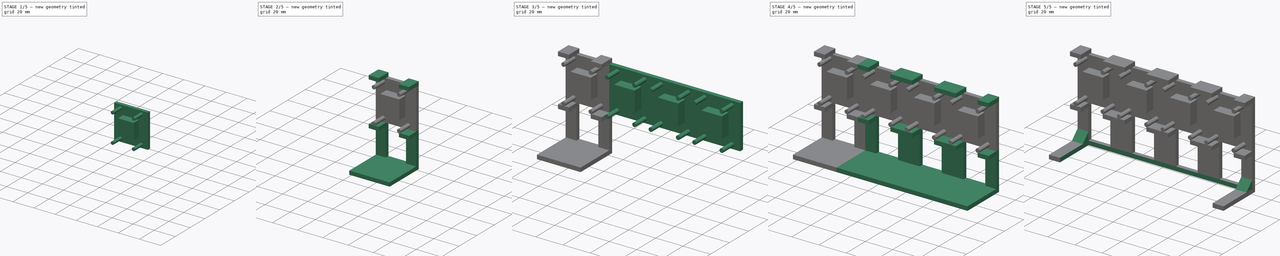
[diagram: build sequence overview — one tinted view per stage of 5, left to right]
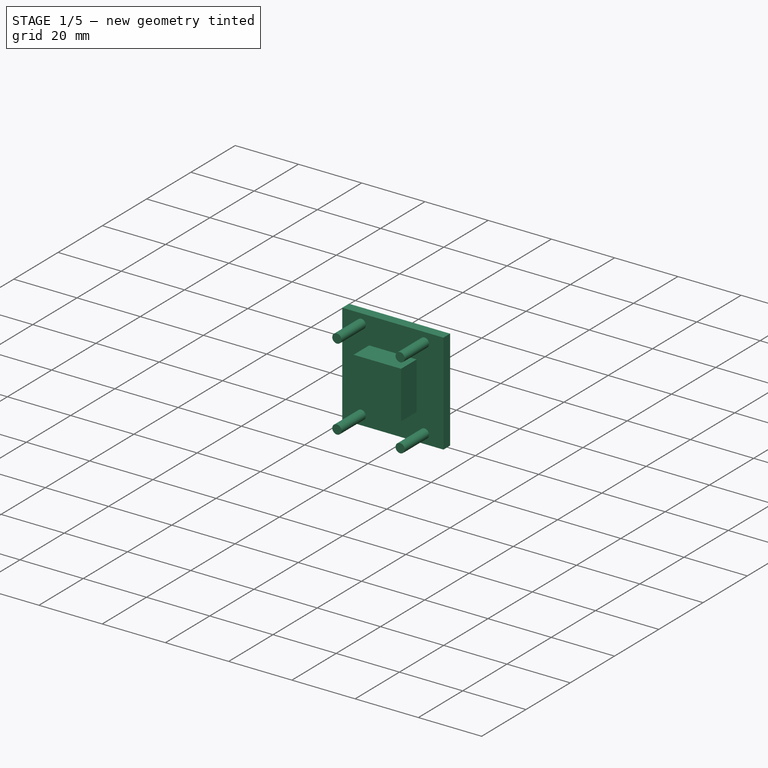
[diagram: stage 1 of 5 — iso view after this stage's code; geometry added in this stage tinted green]
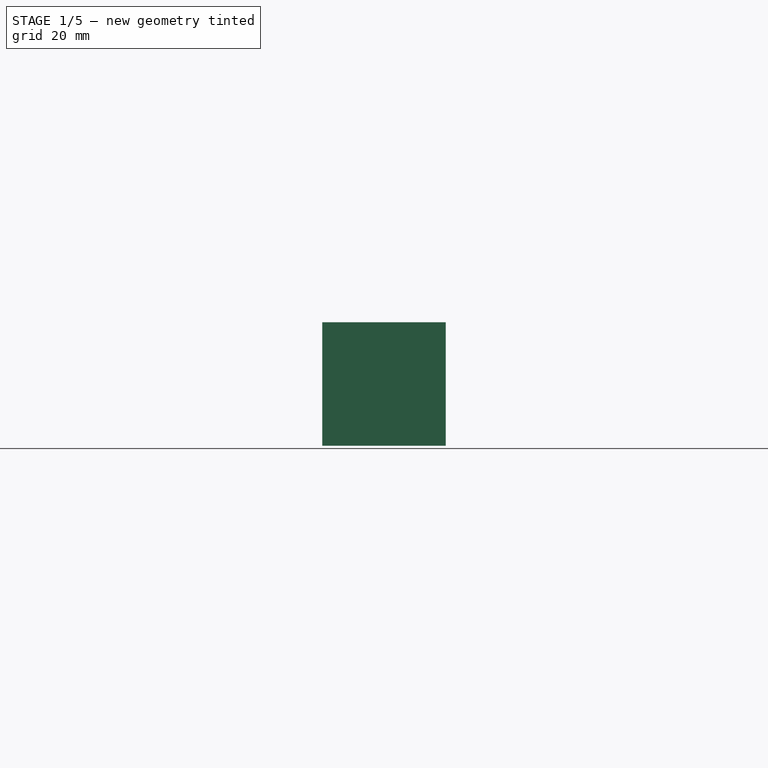
[diagram: stage 1 of 5 — front view after this stage's code; geometry added in this stage tinted green]
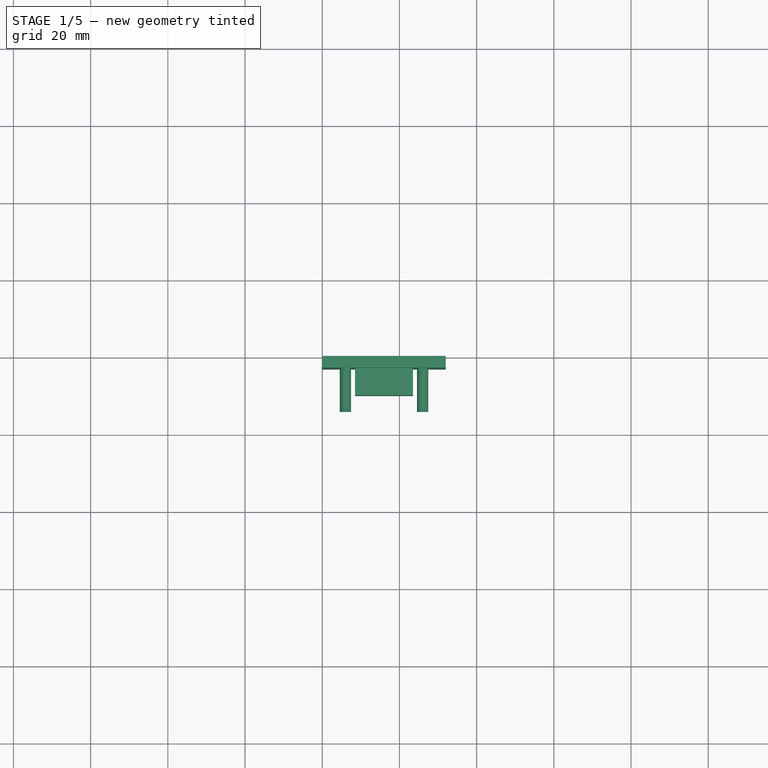
[diagram: stage 1 of 5 — top view after this stage's code; geometry added in this stage tinted green]
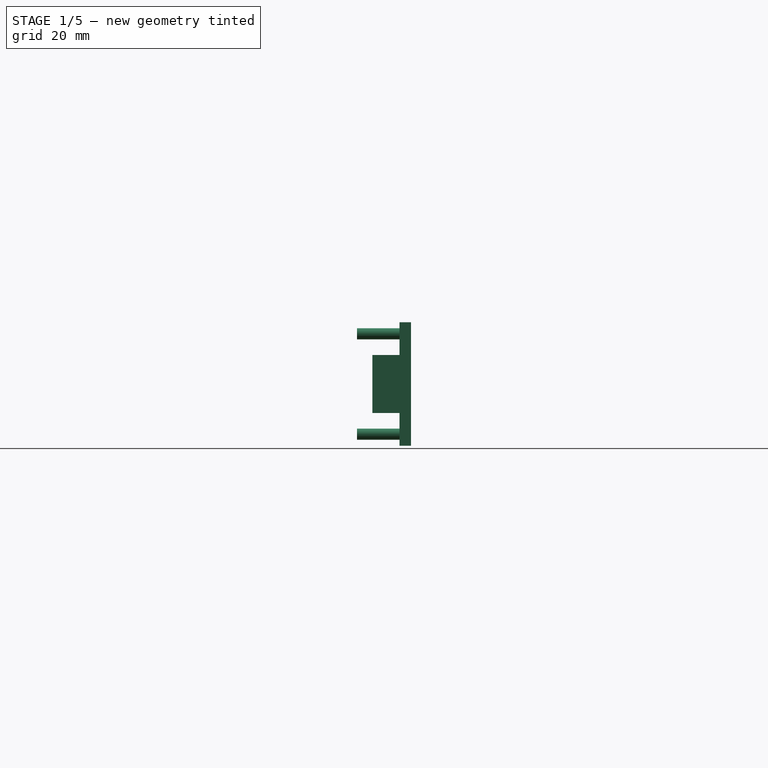
[diagram: stage 1 of 5 — right view after this stage's code; geometry added in this stage tinted green]
FCSTD DOCUMENT  (FreeCAD 0.18R4 (GitTag))
Label: support_afficheur
License: All rights reserved
LicenseURL: http://en.wikipedia.org/wiki/All_rights_reserved
objects: Sketcher::SketchObject×9, PartDesign::Pad×8, PartDesign::LinearPattern×6, App::MeasureDistance×4, Spreadsheet::Sheet×1, PartDesign::Pocket×1, PartDesign::Body×1, TechDraw::DrawSVGTemplate×1, TechDraw::DrawPage×1
note: 34 computed .brp shape members not serialized (recipe doc carries the construction recipe); baked Part::Feature solids carry a one-line shape summary decoded from their .brp

FEATURE [Sketcher::SketchObject] Sketch
  MapMode = 5
  Placement = pos=(0,0,0) rot=(1,0,0;1.5708rad)
  Support = -> [XZ_Plane]
  sketch-geometry (4):
    g0: LineSegment StartX=0 StartY=0 StartZ=0 EndX=32 EndY=0 EndZ=0
    g1: LineSegment StartX=32 StartY=0 StartZ=0 EndX=32 EndY=32 EndZ=0
    g2: LineSegment StartX=32 StartY=32 StartZ=0 EndX=0 EndY=32 EndZ=0
    g3: LineSegment StartX=0 StartY=32 StartZ=0 EndX=0 EndY=0 EndZ=0
  constraints (11):
    c: Coincident(g0,g1)
    c: Coincident(g1,g2)
    c: Coincident(g2,g3)
    c: Coincident(g3,g0)
    c: Horizontal(g0)
    c: Horizontal(g2)
    c: Vertical(g1)
    c: Vertical(g3)
    c: Coincident(g0,g-1)
    c: DistanceY(g1,g1) = 32
    c: DistanceX(g2,g2) = 32
FEATURE [PartDesign::Pad] Pad
  Length = 3
  Length2 = 100
  Placement = pos=(0,0,0) rot=(1,0,0;1.5708rad)
  Profile = -> Sketch
  Type = 0
  expr: Length = dimensions.epaisseur_arriere
FEATURE [Sketcher::SketchObject] Sketch001  label="Trous"
  ExternalGeometry = -> [Pad]
  MapMode = 5
  Placement = pos=(0,-3,0) rot=(1,0,0;1.5708rad)
  Support = -> [Pad]
  expr: Constraints[7] = dimensions.pos_y_trou
  expr: Constraints[6] = dimensions.pos_x_trou
  expr: Constraints[4] = dimensions.pos_y_trou
  expr: Constraints[3] = dimensions.pos_x_trou
  expr: Constraints[1] = dimensions.pos_y_trou
  expr: Constraints[0] = dimensions.pos_x_trou
  expr: Constraints[9] = dimensions.pos_x_trou
  expr: Constraints[10] = dimensions.pos_y_trou
  expr: Constraints[5] = dimensions.diametre_trou
  expr: Constraints[2] = dimensions.diametre_trou
  expr: Constraints[8] = dimensions.diametre_trou
  expr: Constraints[11] = dimensions.diametre_trou
  sketch-geometry (4):
    g0: Circle CenterX=6 CenterY=3 CenterZ=0 NormalX=0 NormalY=0 NormalZ=1 AngleXU=0 Radius=1.45
    g1: Circle CenterX=26 CenterY=3 CenterZ=0 NormalX=0 NormalY=0 NormalZ=1 AngleXU=0 Radius=1.45
    g2: Circle CenterX=26 CenterY=29 CenterZ=0 NormalX=0 NormalY=0 NormalZ=1 AngleXU=0 Radius=1.45
    g3: Circle CenterX=6 CenterY=29 CenterZ=0 NormalX=0 NormalY=0 NormalZ=1 AngleXU=0 Radius=1.45
  constraints (12):
    c: DistanceX(g-1,g0) = 6
    c: DistanceY(g-1,g0) = 3
    c: Diameter(g0) = 2.9
    c: DistanceX(g1,g-3) = 6
    c: DistanceY(g-3,g1) = 3
    c: Diameter(g1) = 2.9
    c: DistanceX(g2,g-3) = 6
    c: DistanceY(g2,g-3) = 3
    c: Diameter(g2) = 2.9
    c: DistanceX(g-4,g3) = 6
    c: DistanceY(g3,g-4) = 3
    c: Diameter(g3) = 2.9
FEATURE [PartDesign::Pad] Pad001
  BaseFeature = -> Pad
  Length = 11
  Length2 = 100
  Placement = pos=(0,0,0) rot=(1,0,0;1.5708rad)
  Profile = -> Sketch001
  Type = 0
  expr: Length = dimensions.hauteur_tige
FEATURE [Sketcher::SketchObject] Sketch002
  MapMode = 5
  Placement = pos=(0,-3,0) rot=(1,0,0;1.5708rad)
  Support = -> [Pad001]
  expr: Constraints[14] = dimensions.largeur_supp_ar
  expr: Constraints[13] = dimensions.pos_y_supp_ar
  expr: Constraints[12] = dimensions.pos_x_supp_ar
  sketch-geometry (5):
    g0: LineSegment StartX=23.5 StartY=23.5 StartZ=0 EndX=8.5 EndY=23.5 EndZ=0
    g1: LineSegment StartX=8.5 StartY=23.5 StartZ=0 EndX=8.5 EndY=8.5 EndZ=0
    g2: LineSegment StartX=8.5 StartY=8.5 StartZ=0 EndX=23.5 EndY=8.5 EndZ=0
    g3: LineSegment StartX=23.5 StartY=8.5 StartZ=0 EndX=23.5 EndY=23.5 EndZ=0
    g4: Circle [constr] CenterX=16 CenterY=16 CenterZ=0 NormalX=0 NormalY=0 NormalZ=1 AngleXU=0 Radius=10.6066
  constraints (15):
    c: Coincident(g0,g1)
    c: Coincident(g1,g2)
    c: Coincident(g2,g3)
    c: Coincident(g3,g0)
    c: Equal(g0,g1)
    c: Equal(g0,g2)
    c: Equal(g0,g3)
    c: PointOnObject(g0,g4)
    c: PointOnObject(g1,g4)
    c: PointOnObject(g2,g4)
    c: PointOnObject(g3,g4)
    c: Parallel(g-1,g2)
    c: DistanceX(g-1,g4) = 16
    c: DistanceY(g-1,g4) = 16
    c: DistanceY(g3,g3) = 15
FEATURE [PartDesign::Pad] Pad002
  BaseFeature = -> Pad001
  Length = 7
  Length2 = 100
  Placement = pos=(0,0,0) rot=(1,0,0;1.5708rad)
  Profile = -> Sketch002
  Type = 0
  expr: Length = dimensions.hauteur_supp_ar
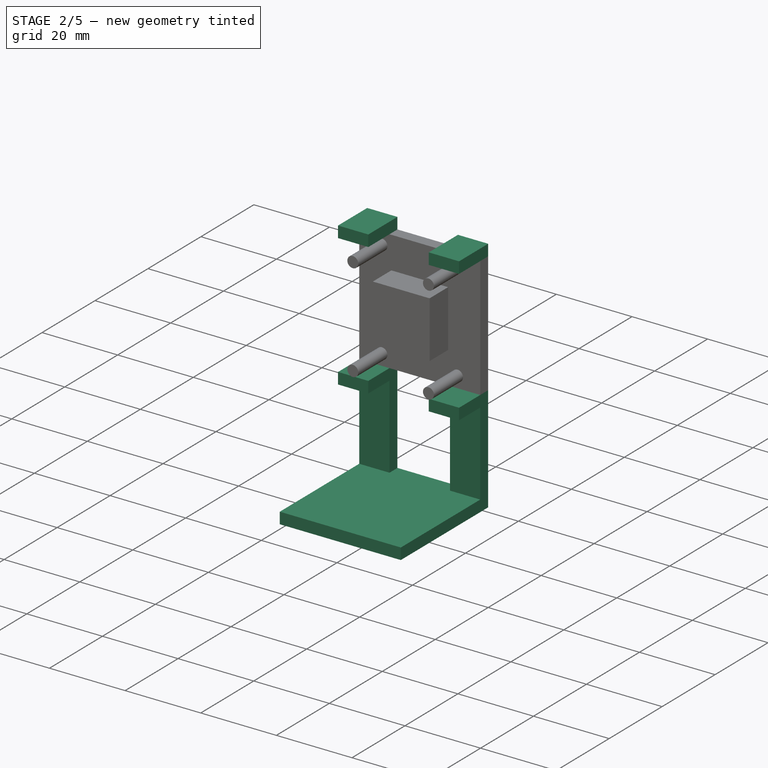
[diagram: stage 2 of 5 — iso view after this stage's code; geometry added in this stage tinted green]
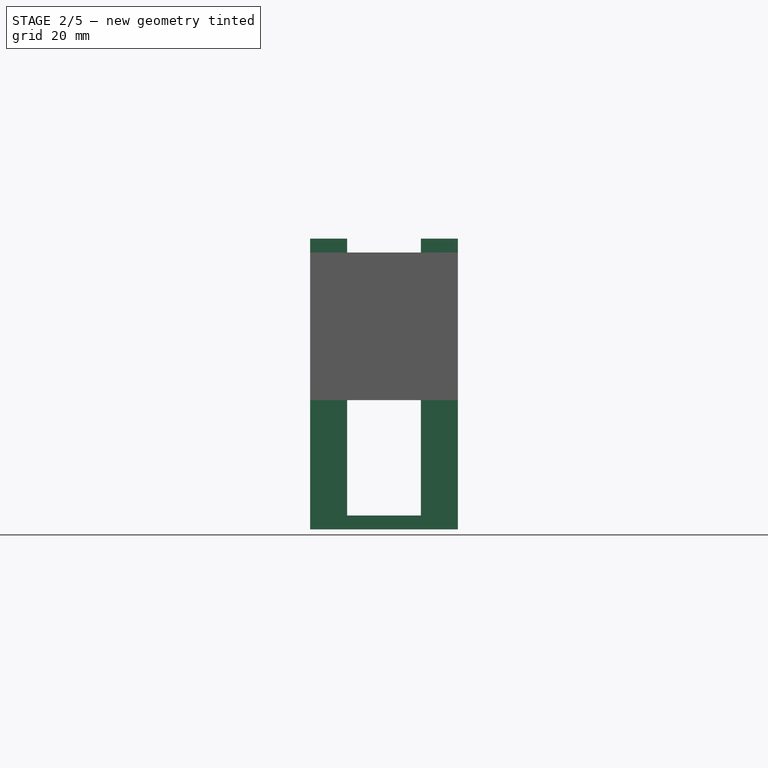
[diagram: stage 2 of 5 — front view after this stage's code; geometry added in this stage tinted green]
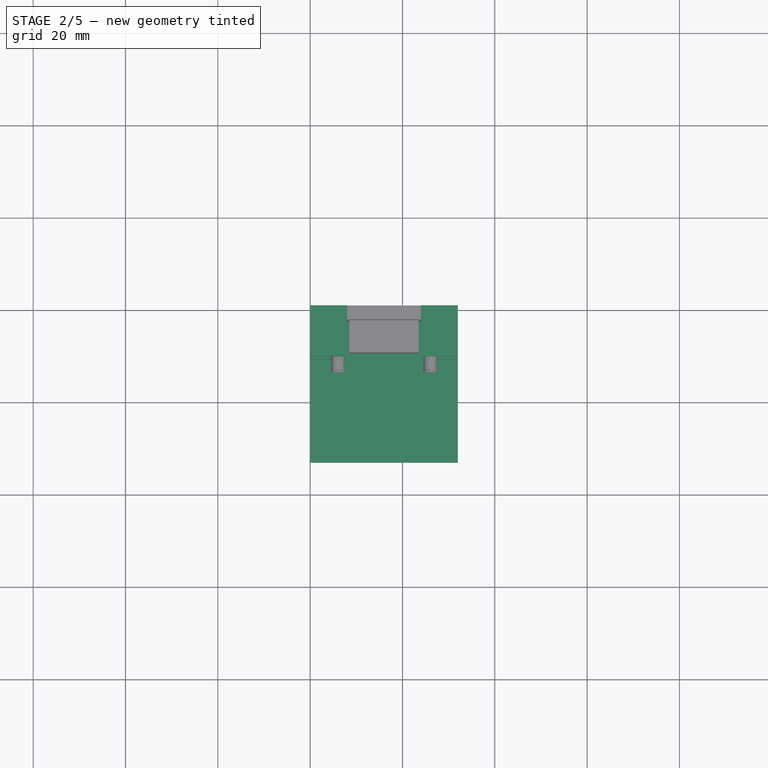
[diagram: stage 2 of 5 — top view after this stage's code; geometry added in this stage tinted green]
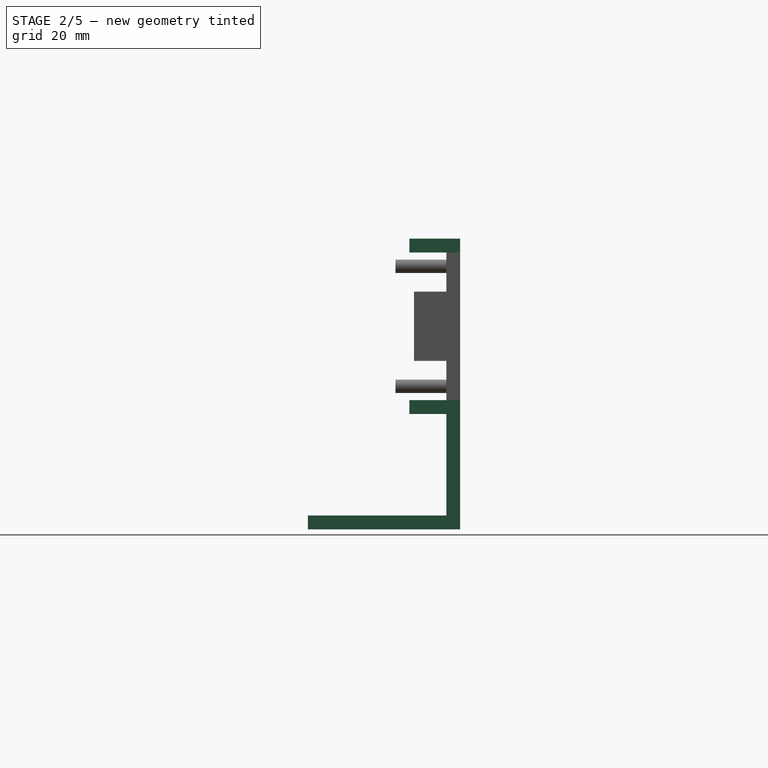
[diagram: stage 2 of 5 — right view after this stage's code; geometry added in this stage tinted green]
FEATURE [Sketcher::SketchObject] Sketch003  label="support_top_bottom"
  ExternalGeometry = -> [Pad002]
  MapMode = 5
  Placement = pos=(0,0,0) rot=(1,0,0;1.5708rad)
  Support = -> [XZ_Plane]
  expr: Constraints[32] = dimensions.supp_top_bot_larg
  expr: Constraints[31] = dimensions.supp_top_bot_long
  expr: Constraints[21] = dimensions.supp_top_bot_larg
  expr: Constraints[20] = dimensions.supp_top_bot_long
  expr: Constraints[43] = dimensions.supp_top_bot_larg
  expr: Constraints[42] = dimensions.supp_top_bot_long
  expr: Constraints[10] = dimensions.supp_top_bot_larg
  expr: Constraints[9] = dimensions.supp_top_bot_long
  sketch-geometry (16):
    g0: LineSegment StartX=0 StartY=0 StartZ=0 EndX=8 EndY=0 EndZ=0
    g1: LineSegment StartX=8 StartY=0 StartZ=0 EndX=8 EndY=-3 EndZ=0
    g2: LineSegment StartX=8 StartY=-3 StartZ=0 EndX=0 EndY=-3 EndZ=0
    g3: LineSegment StartX=0 StartY=-3 StartZ=0 EndX=0 EndY=0 EndZ=0
    g4: LineSegment StartX=0 StartY=32 StartZ=0 EndX=8 EndY=32 EndZ=0
    g5: LineSegment StartX=8 StartY=32 StartZ=0 EndX=8 EndY=35 EndZ=0
    g6: LineSegment StartX=8 StartY=35 StartZ=0 EndX=0 EndY=35 EndZ=0
    g7: LineSegment StartX=0 StartY=35 StartZ=0 EndX=0 EndY=32 EndZ=0
    g8: LineSegment StartX=24 StartY=35 StartZ=0 EndX=32 EndY=35 EndZ=0
    g9: LineSegment StartX=32 StartY=35 StartZ=0 EndX=32 EndY=32 EndZ=0
    g10: LineSegment StartX=32 StartY=32 StartZ=0 EndX=24 EndY=32 EndZ=0
    g11: LineSegment StartX=24 StartY=32 StartZ=0 EndX=24 EndY=35 EndZ=0
    g12: LineSegment StartX=24 StartY=0 StartZ=0 EndX=32 EndY=0 EndZ=0
    g13: LineSegment StartX=32 StartY=0 StartZ=0 EndX=32 EndY=-3 EndZ=0
    g14: LineSegment StartX=32 StartY=-3 StartZ=0 EndX=24 EndY=-3 EndZ=0
    g15: LineSegment StartX=24 StartY=-3 StartZ=0 EndX=24 EndY=0 EndZ=0
  constraints (44):
    c: Coincident(g0,g1)
    c: Coincident(g1,g2)
    c: Coincident(g2,g3)
    c: Coincident(g3,g0)
    c: Horizontal(g0)
    c: Horizontal(g2)
    c: Vertical(g1)
    c: Vertical(g3)
    c: Coincident(g0,g-1)
    c: DistanceX(g0,g0) = 8
    c: DistanceY(g1,g1) = 3
    c: Coincident(g4,g5)
    c: Coincident(g5,g6)
    c: Coincident(g6,g7)
    c: Coincident(g7,g4)
    c: Horizontal(g4)
    c: Horizontal(g6)
    c: Vertical(g5)
    c: Vertical(g7)
    c: Coincident(g4,g-3)
    c: DistanceX(g6,g6) = 8
    c: DistanceY(g7,g7) = 3
    c: Coincident(g8,g9)
    c: Coincident(g9,g10)
    c: Coincident(g10,g11)
    c: Coincident(g11,g8)
    c: Horizontal(g8)
    c: Horizontal(g10)
    c: Vertical(g9)
    c: Vertical(g11)
    c: Coincident(g9,g-3)
    c: DistanceX(g8,g8) = 8
    c: DistanceY(g9,g9) = 3
    c: Coincident(g12,g13)
    c: Coincident(g13,g14)
    c: Coincident(g14,g15)
    c: Coincident(g15,g12)
    c: Horizontal(g12)
    c: Horizontal(g14)
    c: Vertical(g13)
    c: Vertical(g15)
    c: Coincident(g-4,g12)
    c: DistanceX(g14,g14) = 8
    c: DistanceY(g13,g13) = 3
FEATURE [PartDesign::Pad] Pad003
  BaseFeature = -> Pad002
  Length = 11
  Length2 = 100
  Placement = pos=(0,0,0) rot=(1,0,0;1.5708rad)
  Profile = -> Sketch003
  Type = 0
  expr: Length = dimensions.epaisseur_top_bot_supp
FEATURE [Spreadsheet::Sheet] Spreadsheet  label="dimensions"
  cells = A1=largeur (mm); B1=epaisseur arrriere (mm); C1=diametre tour(mm); D1=pos_x_trou (mm); E1=pos_y_trou (mm); F1=hauteur_tige (mm); G1=pos_x_supp_ar (mm); H1=pos_y_supp_ar (mm); A2(largeur)==32mm; B2(epaisseur_arriere)==3mm; C2(diametre_trou)==2.9mm; D2(pos_x_trou)==6mm; E2(pos_y_trou)==3mm; F2(hauteur_tige)==11mm; G2(pos_x_supp_ar)==largeur / 2; H2(pos_y_supp_ar)==largeur / 2; G4=largeur_supp_ar (mm); H4=hauteur_supp_ar (mm=; G5(largeur_supp_ar)==15mm; H5(hauteur_supp_ar)==7mm; G7=supp_top_bot_larg (mm); H7=supp_top_bot_long (mm); I7=epaisseur_top_bot_supp (mm); G8(supp_top_bot_larg)==3mm; H8(supp_top_bot_long)==8mm; I8(epaisseur_top_bot_supp)==epaisseur_arriere + hauteur_supp_ar + 1mm; A11=supp_nb; B11=longueur repetition lineaire (mm); A12(supp_nb)=4; B12(lg_repetition_lin)==(supp_nb - 1) * largeur; A15=longueur_supp_sol (mm); B15=hauteur_supp_sol  (mm); C15=longueur_supp_sol2; D15=epaisseur_supp_sol; E15=hauteur_trou_cable; G15=lg_x_renfort; H15=lg_y_renfort; A16(lg_supp_sol)==30mm; B16(ht_supp_sol)==25mm; C16(lg_supp_sol_2)==50mm; D16(ep_supp_sol)==3mm; E16(ht_trou_cable)==ht_supp_sol - ep_supp_sol; G16(lg_x_renfort)==3mm; H16(lg_y_renfort)==6mm; A18=longueur_enlevement_supp_sol; A19(lg_enlevement_supp_bot)==supp_nb * largeur - 2 * supp_top_bot_long
FEATURE [Sketcher::SketchObject] Sketch004
  ExternalGeometry = -> [Pad003]
  MapMode = 5
  Placement = pos=(0,0,0) rot=(1,0,0;1.5708rad)
  Support = -> [XZ_Plane]
  expr: Constraints[13] = dimensions.ht_trou_cable
  expr: Constraints[10] = dimensions.ht_trou_cable
  expr: Constraints[4] = dimensions.largeur
  expr: Constraints[1] = dimensions.ht_supp_sol
  sketch-geometry (8):
    g0: LineSegment StartX=2.20879e-10 StartY=-2.99953 StartZ=0 EndX=0 EndY=-27.9995 EndZ=0
    g1: LineSegment StartX=0 StartY=-27.9995 StartZ=0 EndX=32 EndY=-27.9995 EndZ=0
    g2: LineSegment StartX=32 StartY=-27.9995 StartZ=0 EndX=32 EndY=-3 EndZ=0
    g3: LineSegment StartX=8 StartY=-3 StartZ=0 EndX=8 EndY=-25 EndZ=0
    g4: LineSegment StartX=24 StartY=-3 StartZ=0 EndX=24 EndY=-25 EndZ=0
    g5: LineSegment StartX=8 StartY=-25 StartZ=0 EndX=24 EndY=-25 EndZ=0
    g6: LineSegment StartX=2.20879e-10 StartY=-2.99953 StartZ=0 EndX=8 EndY=-3 EndZ=0
    g7: LineSegment StartX=24 StartY=-3 StartZ=0 EndX=32 EndY=-3 EndZ=0
  constraints (20):
    c: PointOnObject(g0,g-2)
    c: DistanceY(g0,g0) = 25
    c: Coincident(g1,g0)
    c: Perpendicular(g1,g0)
    c: DistanceX(g1,g1) = 32
    c: Coincident(g2,g1)
    c: Parallel(g2,g0)
    c: Coincident(g-3,g2)
    c: Coincident(g3,g-4)
    c: Parallel(g3,g0)
    c: DistanceY(g3,g3) = 22
    c: Coincident(g4,g-3)
    c: Parallel(g4,g2)
    c: DistanceY(g4,g4) = 22
    c: Coincident(g5,g3)
    c: Coincident(g5,g4)
    c: Coincident(g0,g6)
    c: Coincident(g6,g3)
    c: Coincident(g7,g4)
    c: Coincident(g7,g2)
FEATURE [PartDesign::Pad] Pad004
  BaseFeature = -> Pad003
  Length = 3
  Length2 = 100
  Placement = pos=(0,0,0) rot=(1,0,0;1.5708rad)
  Profile = -> Sketch004
  Type = 0
  expr: Length = dimensions.epaisseur_arriere
FEATURE [Sketcher::SketchObject] Sketch005
  ExternalGeometry = -> [Pad004]
  MapMode = 5
  Placement = pos=(0,-3,0) rot=(1,0,0;1.5708rad)
  Support = -> [Pad004]
  expr: Constraints[9] = dimensions.ep_supp_sol
  sketch-geometry (4):
    g0: LineSegment StartX=0 StartY=-24.9995 StartZ=0 EndX=32 EndY=-24.9995 EndZ=0
    g1: LineSegment StartX=32 StartY=-24.9995 StartZ=0 EndX=32 EndY=-27.9995 EndZ=0
    g2: LineSegment StartX=32 StartY=-27.9995 StartZ=0 EndX=0 EndY=-27.9995 EndZ=0
    g3: LineSegment StartX=0 StartY=-27.9995 StartZ=0 EndX=0 EndY=-24.9995 EndZ=0
  constraints (10):
    c: Coincident(g0,g1)
    c: Coincident(g1,g2)
    c: Coincident(g2,g3)
    c: Coincident(g3,g0)
    c: Horizontal(g0)
    c: Horizontal(g2)
    c: Vertical(g1)
    c: Vertical(g3)
    c: Coincident(g-3,g2)
    c: DistanceY(g1,g1) = 3
FEATURE [PartDesign::Pad] Pad005
  BaseFeature = -> Pad004
  Length = 30
  Length2 = 100
  Placement = pos=(0,0,0) rot=(1,0,0;1.5708rad)
  Profile = -> Sketch005
  Type = 0
  expr: Length = dimensions.lg_supp_sol
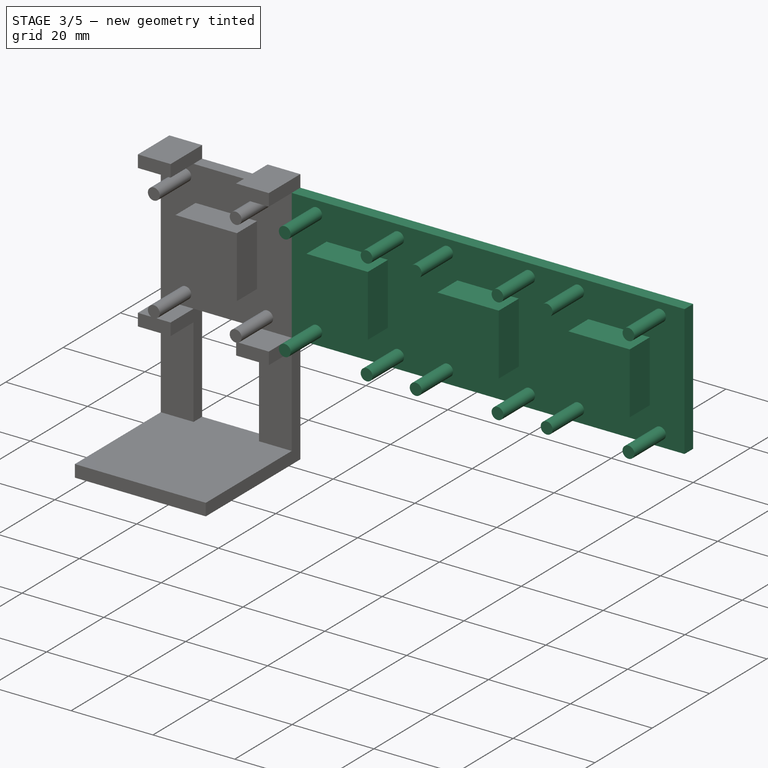
[diagram: stage 3 of 5 — iso view after this stage's code; geometry added in this stage tinted green]
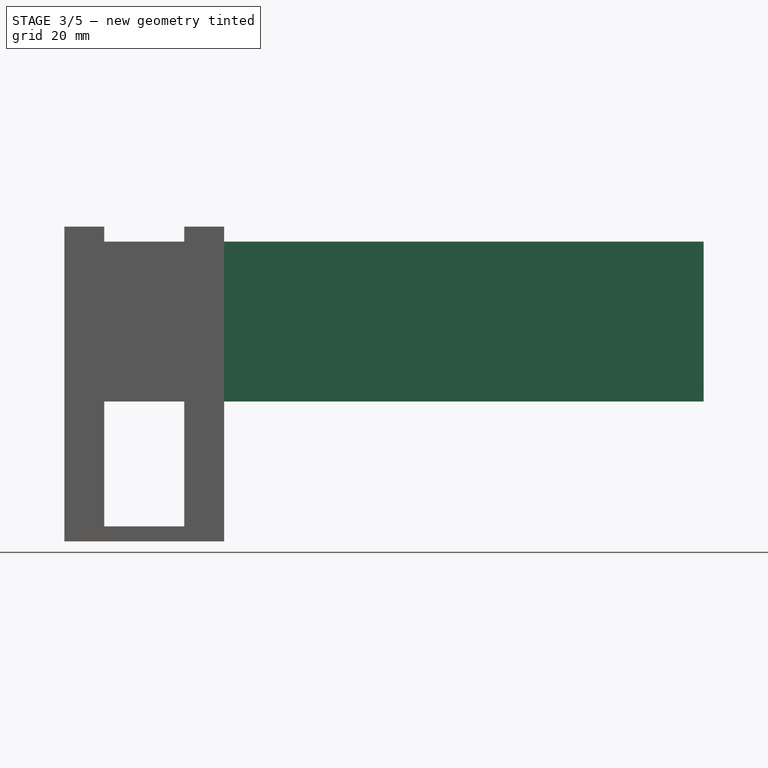
[diagram: stage 3 of 5 — front view after this stage's code; geometry added in this stage tinted green]
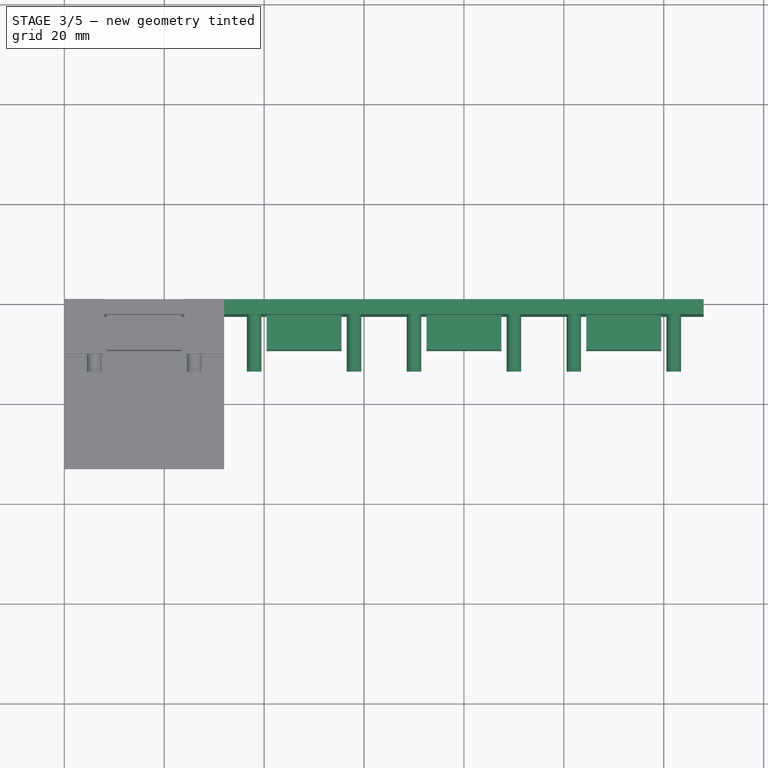
[diagram: stage 3 of 5 — top view after this stage's code; geometry added in this stage tinted green]
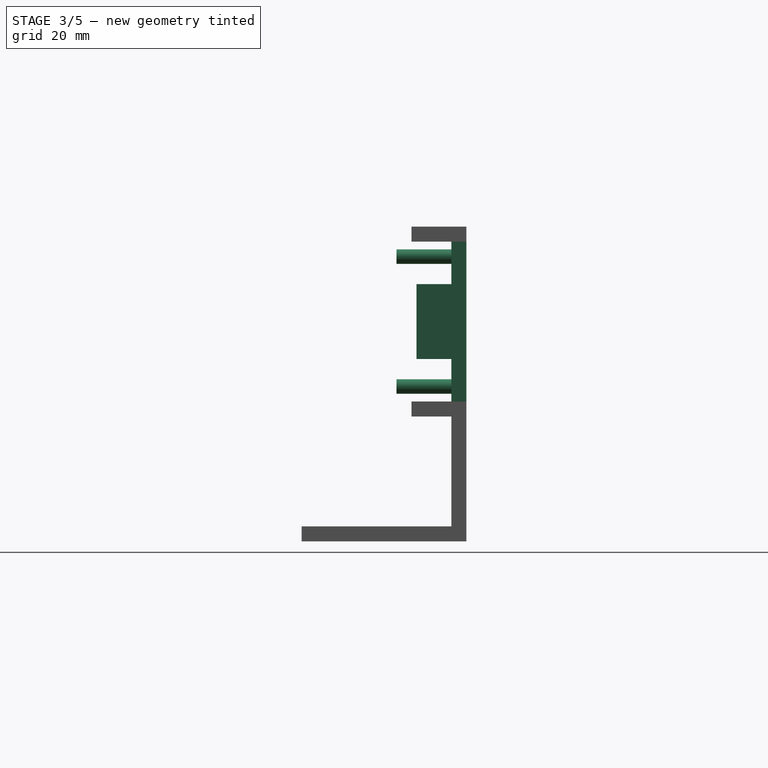
[diagram: stage 3 of 5 — right view after this stage's code; geometry added in this stage tinted green]
FEATURE [PartDesign::LinearPattern] LinearPattern
  BaseFeature = -> Pad005
  Direction = -> Sketch [H_Axis]
  Length = 96
  Occurrences = 4
  Originals = -> [Pad]
  Placement = pos=(0,0,0) rot=(1,0,0;1.5708rad)
  expr: Occurrences = dimensions.supp_nb
  expr: Length = dimensions.lg_repetition_lin
FEATURE [PartDesign::LinearPattern] LinearPattern001
  BaseFeature = -> LinearPattern
  Direction = -> Sketch001 [H_Axis]
  Length = 96
  Occurrences = 4
  Originals = -> [Pad001]
  Placement = pos=(0,0,0) rot=(1,0,0;1.5708rad)
  expr: Occurrences = dimensions.supp_nb
  expr: Length = dimensions.lg_repetition_lin
FEATURE [PartDesign::LinearPattern] LinearPattern002
  BaseFeature = -> LinearPattern001
  Direction = -> Sketch002 [H_Axis]
  Length = 96
  Occurrences = 4
  Originals = -> [Pad002]
  Placement = pos=(0,0,0) rot=(1,0,0;1.5708rad)
  expr: Occurrences = dimensions.supp_nb
  expr: Length = dimensions.lg_repetition_lin
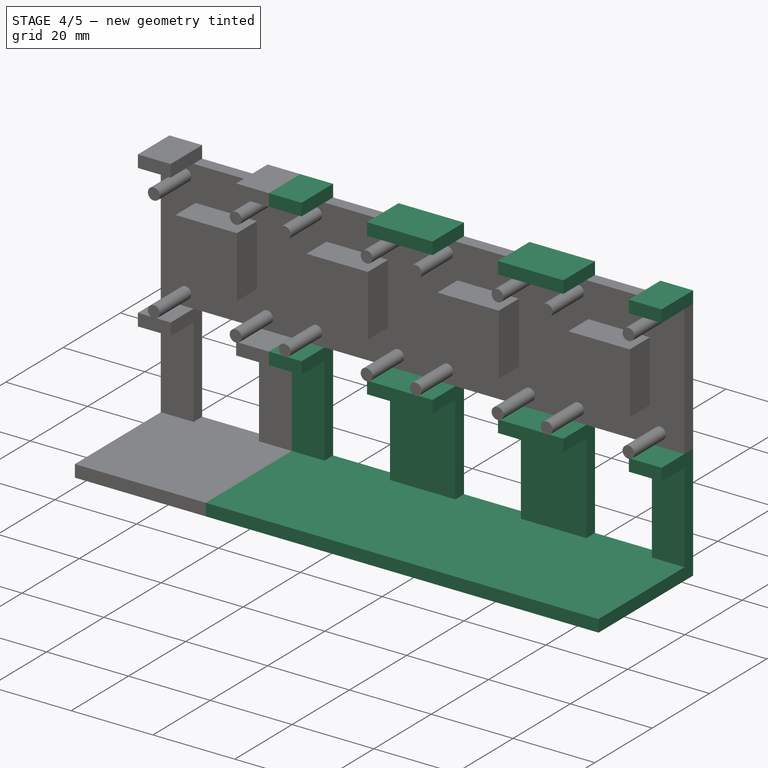
[diagram: stage 4 of 5 — iso view after this stage's code; geometry added in this stage tinted green]
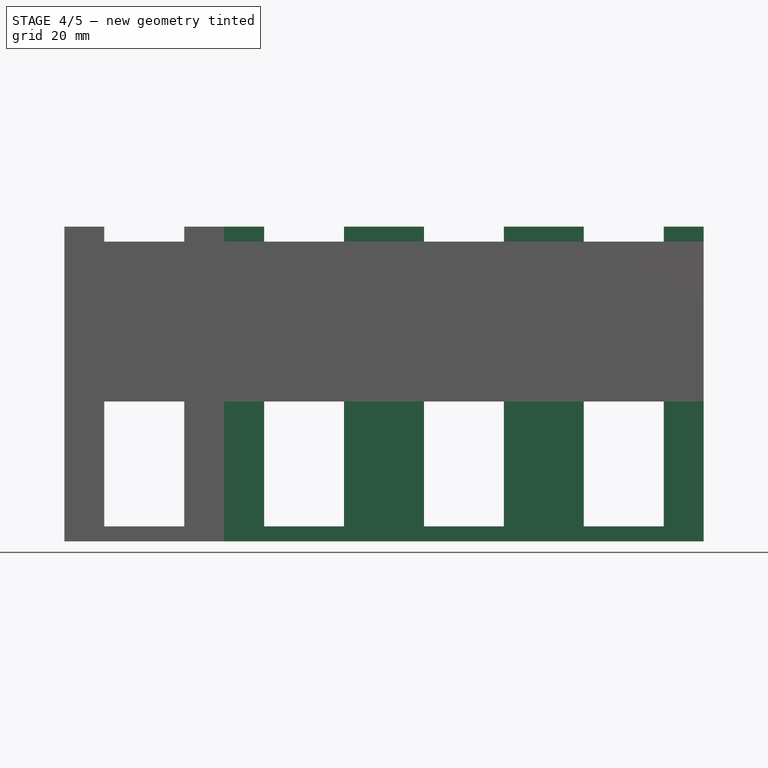
[diagram: stage 4 of 5 — front view after this stage's code; geometry added in this stage tinted green]
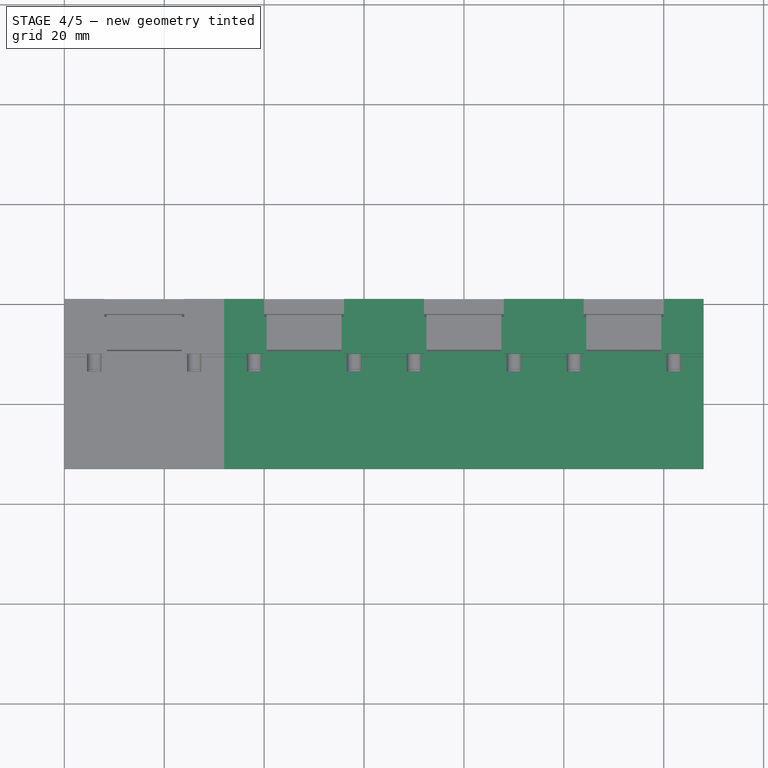
[diagram: stage 4 of 5 — top view after this stage's code; geometry added in this stage tinted green]
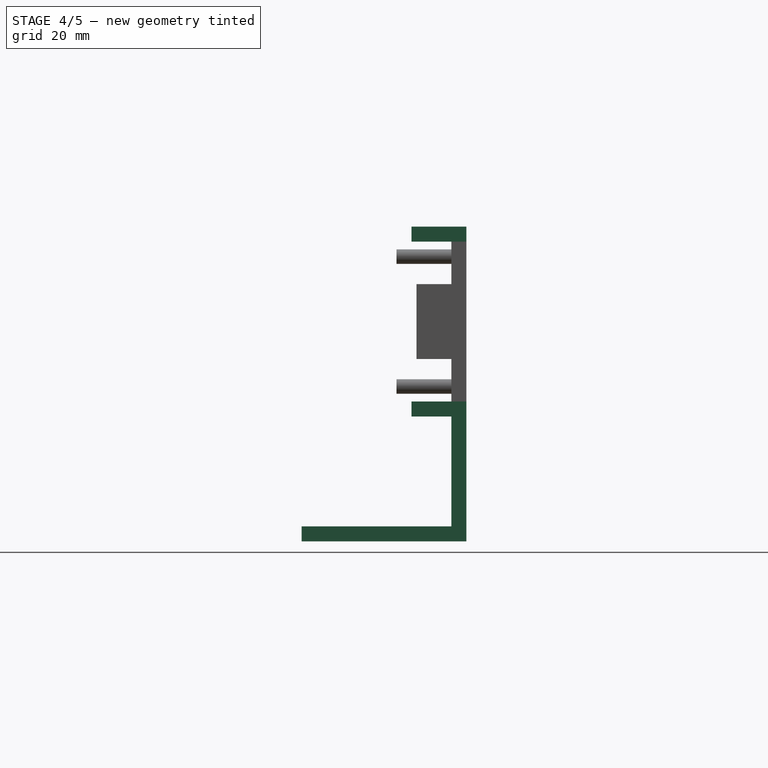
[diagram: stage 4 of 5 — right view after this stage's code; geometry added in this stage tinted green]
FEATURE [PartDesign::LinearPattern] LinearPattern003
  BaseFeature = -> LinearPattern002
  Direction = -> Sketch003 [H_Axis]
  Length = 96
  Occurrences = 4
  Originals = -> [Pad003]
  Placement = pos=(0,0,0) rot=(1,0,0;1.5708rad)
  expr: Occurrences = dimensions.supp_nb
  expr: Length = dimensions.lg_repetition_lin
FEATURE [PartDesign::LinearPattern] LinearPattern004
  BaseFeature = -> LinearPattern003
  Direction = -> Sketch004 [H_Axis]
  Length = 96
  Occurrences = 4
  Originals = -> [Pad004]
  Placement = pos=(0,0,0) rot=(1,0,0;1.5708rad)
  expr: Occurrences = dimensions.supp_nb
  expr: Length = dimensions.lg_repetition_lin
FEATURE [PartDesign::LinearPattern] LinearPattern005
  BaseFeature = -> LinearPattern004
  Direction = -> Sketch005 [H_Axis]
  Length = 96
  Occurrences = 4
  Originals = -> [Pad005]
  Placement = pos=(0,0,0) rot=(1,0,0;1.5708rad)
  expr: Occurrences = dimensions.supp_nb
  expr: Length = dimensions.lg_repetition_lin
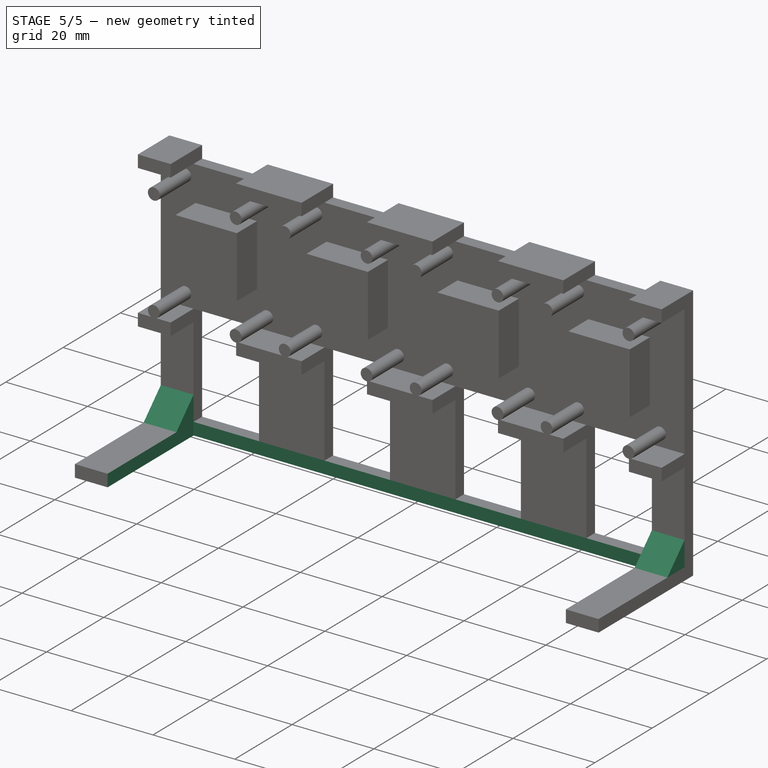
[diagram: stage 5 of 5 — iso view after this stage's code; geometry added in this stage tinted green]
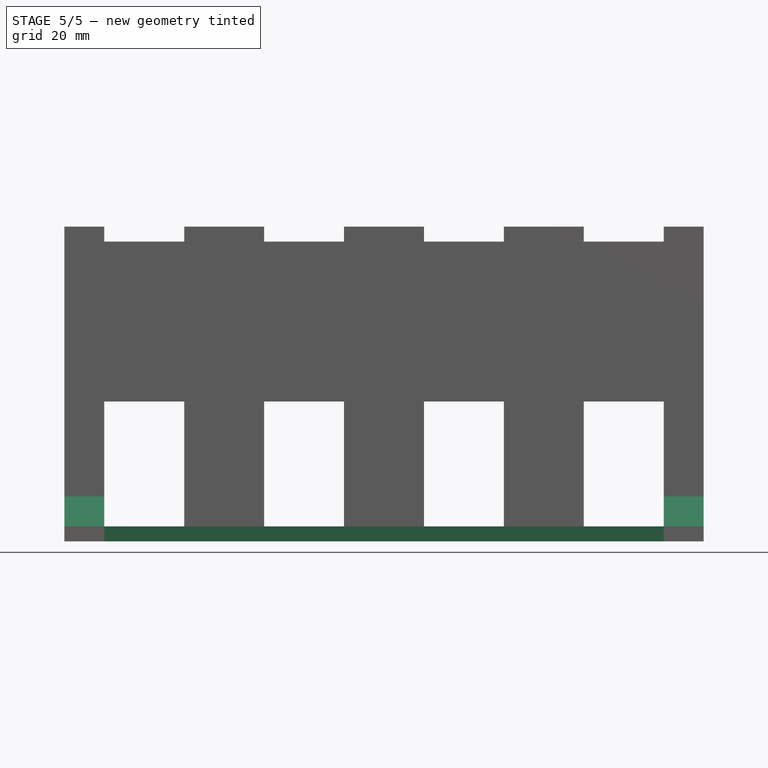
[diagram: stage 5 of 5 — front view after this stage's code; geometry added in this stage tinted green]
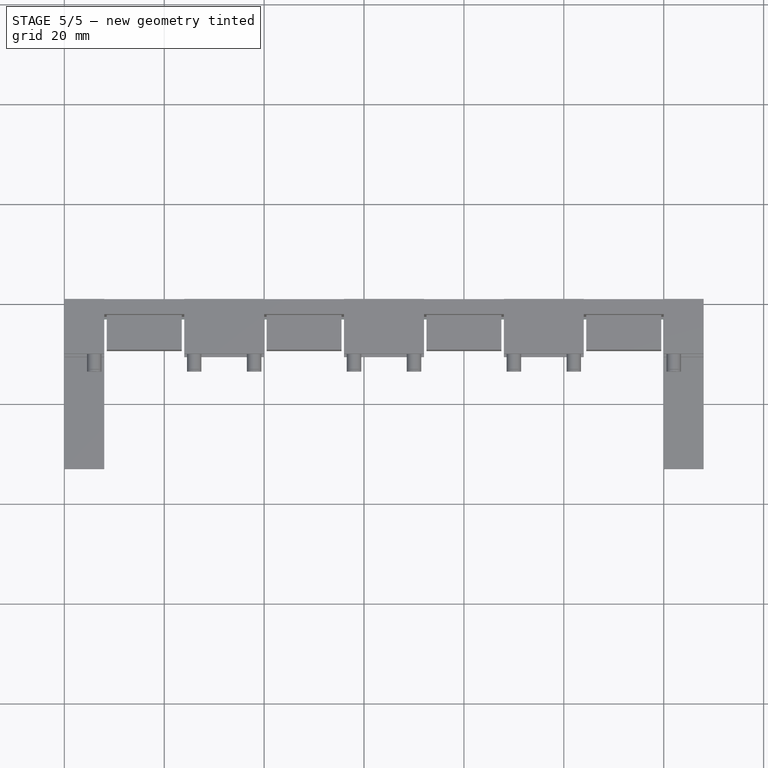
[diagram: stage 5 of 5 — top view after this stage's code; geometry added in this stage tinted green]
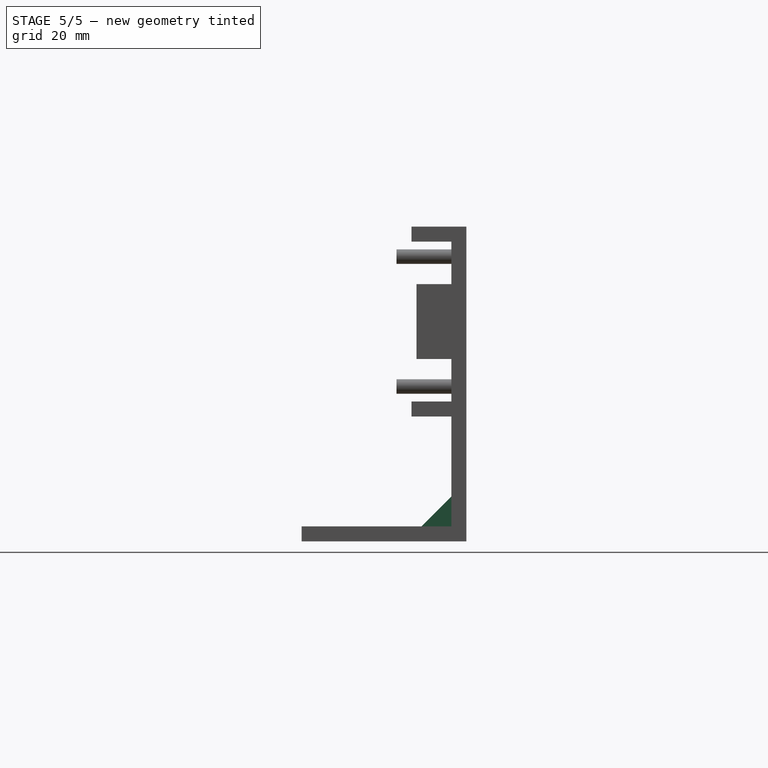
[diagram: stage 5 of 5 — right view after this stage's code; geometry added in this stage tinted green]
FEATURE [Sketcher::SketchObject] Sketch006
  MapMode = 5
  Placement = pos=(0,-6.2e-15,-27.9995) rot=(1,0,0;3.14159rad)
  Support = -> [LinearPattern005]
  expr: Constraints[11] = dimensions.lg_supp_sol
  expr: Constraints[10] = dimensions.lg_enlevement_supp_bot
  expr: Constraints[9] = dimensions.supp_top_bot_long
  expr: Constraints[8] = dimensions.epaisseur_arriere
  sketch-geometry (4):
    g0: LineSegment StartX=8 StartY=3 StartZ=0 EndX=120 EndY=3 EndZ=0
    g1: LineSegment StartX=120 StartY=3 StartZ=0 EndX=120 EndY=33 EndZ=0
    g2: LineSegment StartX=120 StartY=33 StartZ=0 EndX=8 EndY=33 EndZ=0
    g3: LineSegment StartX=8 StartY=33 StartZ=0 EndX=8 EndY=3 EndZ=0
  constraints (12):
    c: Coincident(g0,g1)
    c: Coincident(g1,g2)
    c: Coincident(g2,g3)
    c: Coincident(g3,g0)
    c: Horizontal(g0)
    c: Horizontal(g2)
    c: Vertical(g1)
    c: Vertical(g3)
    c: DistanceY(g-1,g0) = 3
    c: DistanceX(g-1,g0) = 8
    c: DistanceX(g0,g0) = 112
    c: DistanceY(g3,g3) = 30
FEATURE [PartDesign::Pocket] Pocket
  BaseFeature = -> LinearPattern005
  Length = 3
  Length2 = 100
  Placement = pos=(0,0,0) rot=(1,0,0;1.5708rad)
  Profile = -> Sketch006
  Type = 0
  expr: Length = dimensions.ep_supp_sol
FEATURE [Sketcher::SketchObject] Sketch007
  ExternalGeometry = -> [Pocket]
  MapMode = 5
  Placement = pos=(0,0,0) rot=(0.707107,0,-0.707107;3.14159rad)
  Support = -> [Pocket]
  expr: Constraints[7] = dimensions.lg_y_renfort
  sketch-geometry (3):
    g0: LineSegment StartX=24.9995 StartY=3 StartZ=0 EndX=18.9995 EndY=3 EndZ=0
    g1: LineSegment StartX=24.9995 StartY=9 StartZ=0 EndX=24.9995 EndY=3 EndZ=0
    g2: LineSegment StartX=18.9995 StartY=3 StartZ=0 EndX=24.9995 EndY=9 EndZ=0
  constraints (8):
    c: Coincident(g0,g-4)
    c: PointOnObject(g0,g-3)
    c: Coincident(g1,g0)
    c: PointOnObject(g1,g-4)
    c: Coincident(g2,g1)
    c: Coincident(g2,g0)
    c: Angle(g0,g2) = 0.785398
    c: DistanceY(g1,g1) = 6
FEATURE [PartDesign::Pad] Pad006
  BaseFeature = -> Pocket
  Length = 8
  Length2 = 100
  Placement = pos=(0,0,0) rot=(1,0,0;1.5708rad)
  Profile = -> Sketch007
  Reversed = true
  Type = 0
  expr: Length = dimensions.supp_top_bot_long
FEATURE [Sketcher::SketchObject] Sketch008
  ExternalGeometry = -> [Pad006]
  MapMode = 5
  Placement = pos=(128,0,0) rot=(0.707107,0,0.707107;3.14159rad)
  Support = -> [Pad006]
  expr: Constraints[7] = dimensions.lg_y_renfort
  sketch-geometry (3):
    g0: LineSegment StartX=-24.9995 StartY=3 StartZ=0 EndX=-18.9995 EndY=3 EndZ=0
    g1: LineSegment StartX=-24.9995 StartY=9 StartZ=0 EndX=-18.9995 EndY=3 EndZ=0
    g2: LineSegment StartX=-24.9995 StartY=9 StartZ=0 EndX=-24.9995 EndY=3 EndZ=0
  constraints (8):
    c: Coincident(g0,g-4)
    c: PointOnObject(g0,g-3)
    c: Coincident(g1,g0)
    c: PointOnObject(g1,g-4)
    c: Coincident(g2,g0)
    c: Coincident(g1,g2)
    c: Angle(g1,g0) = 0.785398
    c: DistanceY(g2,g2) = 6
FEATURE [PartDesign::Pad] Pad007
  BaseFeature = -> Pad006
  Length = 8
  Length2 = 100
  Placement = pos=(0,0,0) rot=(1,0,0;1.5708rad)
  Profile = -> Sketch008
  Reversed = true
  Type = 0
  expr: Length = dimensions.supp_top_bot_long
FEATURE [PartDesign::Body] Body
  Group = -> [Sketch,Pad,Sketch001,Pad001,Sketch002,Pad002,Sketch003,Pad003,Sketch004,Pad004,Sketch005,Pad005,LinearPattern,LinearPattern001,LinearPattern002,LinearPattern003,LinearPattern004,LinearPattern005,Sketch006,Pocket,Sketch007,Pad006,Sketch008,Pad007]
  Origin = -> Origin
  Tip = -> Pad007
FEATURE [TechDraw::DrawSVGTemplate] Template
  EditableTexts = Designed_by_Name=Designed by Name; Drawing_number=Drawing number; FC-Date=Date; FC-SC=Scale; FC-SH=Sheet; FC-Title=Title; Subtitle=Subtitle; Weight=Weight
  Height = 210
  Orientation = 1
  Width = 297
FEATURE [TechDraw::DrawPage] Page
  KeepUpdated = true
  ProjectionType = 0
  Template = -> Template
FEATURE [App::MeasureDistance] Distance  label="Distance: 8,00 mm"
  Distance = 7.99997
  P1 = (0,-3,31.9997)
  P2 = (0,-11,32)
FEATURE [App::MeasureDistance] Distance001  label="Distance: 7,00 mm"
  Distance = 7.00014
  P1 = (8.48446,-3,23.4593)
  P2 = (8.5,-10,23.5)
FEATURE [App::MeasureDistance] Distance002  label="Distance: 11,00 mm"
  Distance = 10.9969
  P1 = (123.45,-3.00314,29)
  P2 = (123.45,-14,29)
FEATURE [App::MeasureDistance] Distance003  label="Distance: 33,00 mm"
  Distance = 33
  P1 = (128,-33,-27.9995)
  P2 = (128,3.3378e-06,-27.9995)
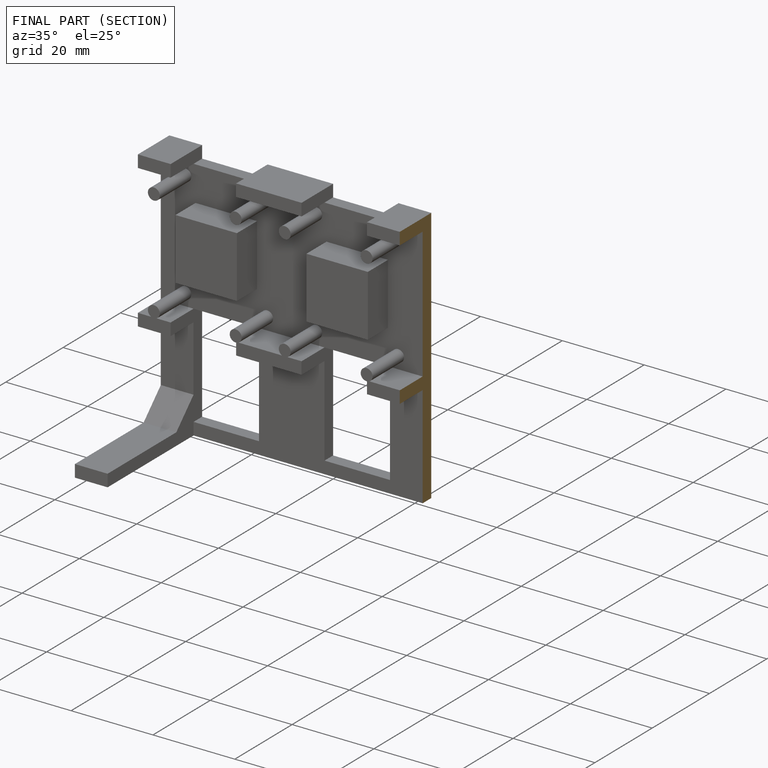
[diagram: finished part — half-section view (interior)]
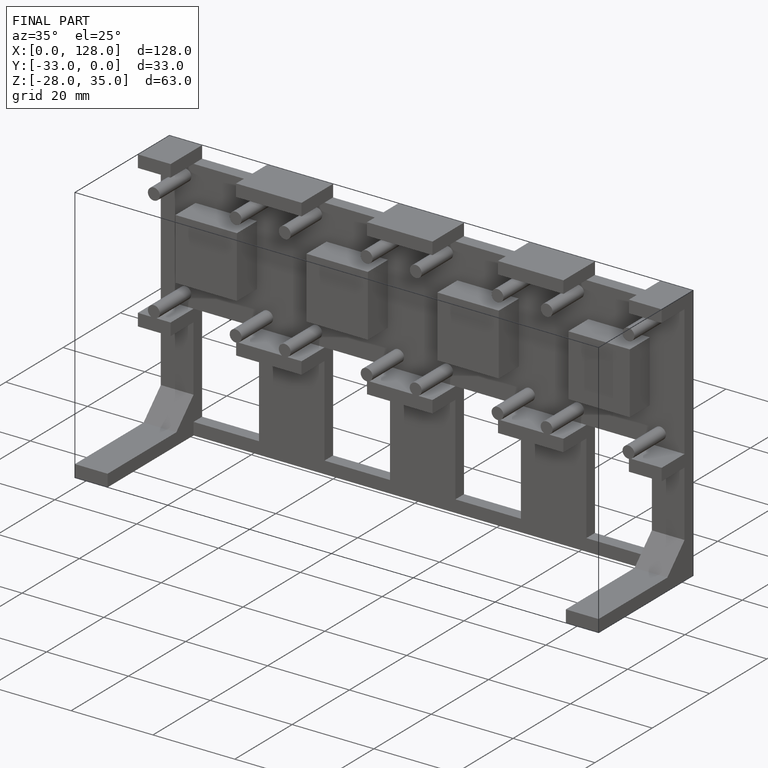
[diagram: finished part — iso view with bounding-box wireframe]
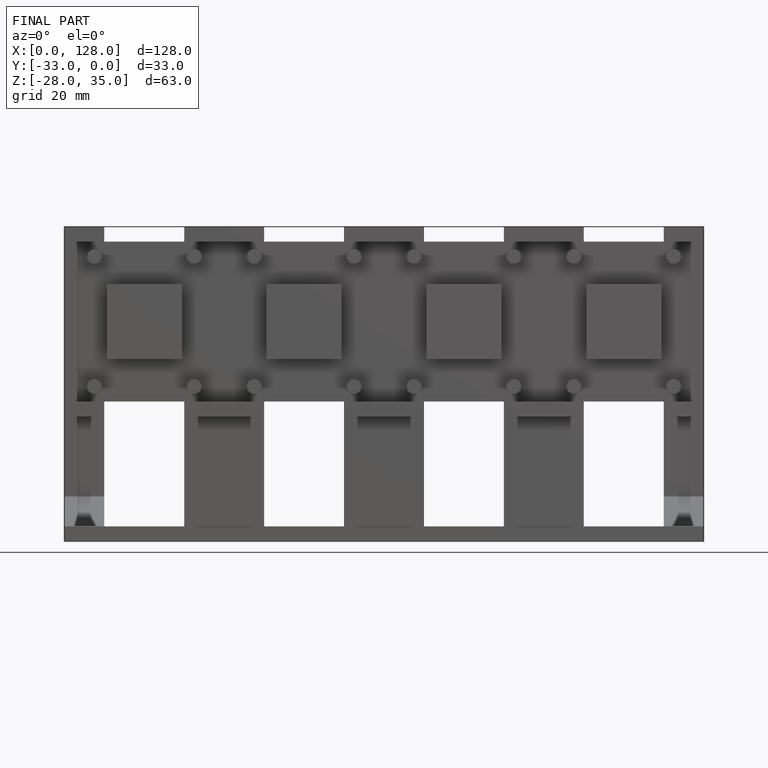
[diagram: finished part — front view with bounding-box wireframe]
